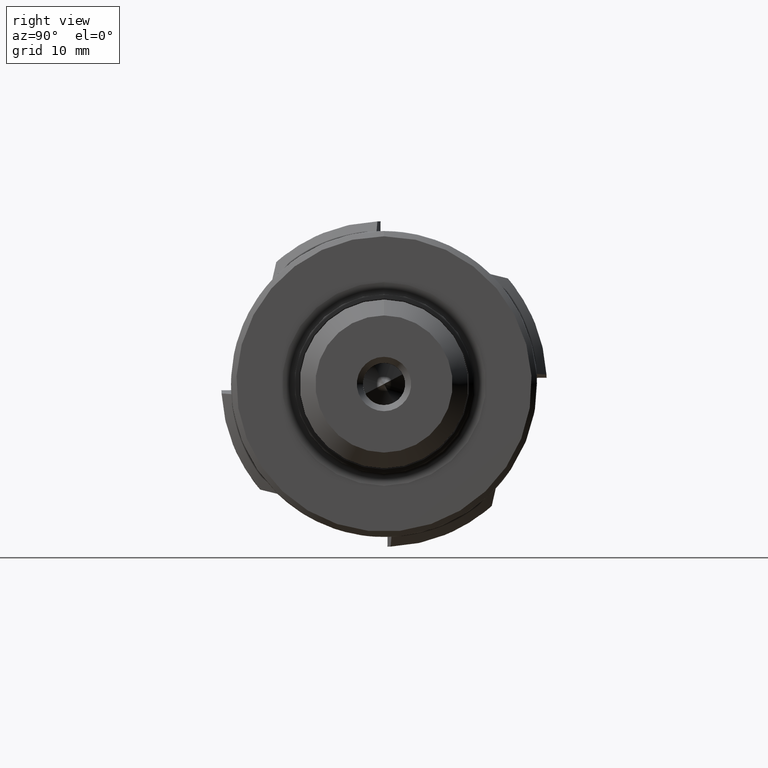
[diagram: clean part render]
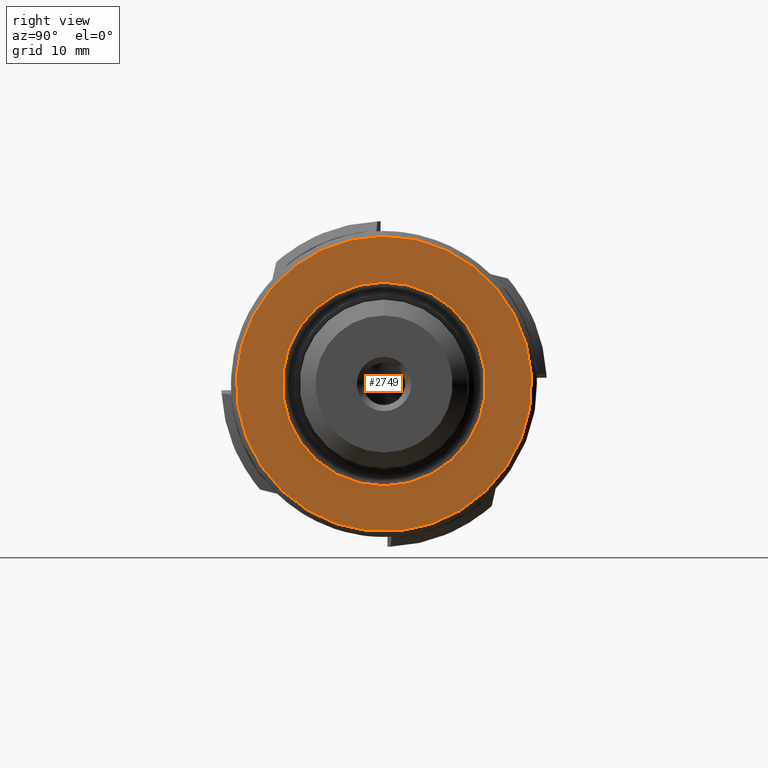
[diagram: same view with one face highlighted and labeled with its STEP entity id]
A machine part, right view. The second image highlights one B-rep face of the part: STEP entity #2749.
In plain terms, the highlighted planar face has unit normal (-1, 0, -0).
Its self-contained STEP definition (entity closure, byte-faithful):
#589 = DIRECTION ( 'NONE',  ( -0.0000000000000000000, 0.0000000000000000000, 1.000000000000000000 ) ) ;
#625 = CIRCLE ( 'NONE', #1569, 9.653493059404514300 ) ;
#946 = AXIS2_PLACEMENT_3D ( 'NONE', #4801, #2371, #5214 ) ;
#966 = ORIENTED_EDGE ( 'NONE', *, *, #2077, .F. ) ;
#983 = DIRECTION ( 'NONE',  ( -1.000000000000000000, 0.0000000000000000000, -0.0000000000000000000 ) ) ;
#1164 = EDGE_CURVE ( 'NONE', #3637, #3637, #625, .T. ) ;
#1569 = AXIS2_PLACEMENT_3D ( 'NONE', #3978, #1570, #4385 ) ;
#1570 = DIRECTION ( 'NONE',  ( -1.000000000000000000, -0.0000000000000000000, -0.0000000000000000000 ) ) ;
#1892 = EDGE_LOOP ( 'NONE', ( #2423 ) ) ;
#2077 = EDGE_CURVE ( 'NONE', #3357, #3357, #5016, .T. ) ;
#2371 = DIRECTION ( 'NONE',  ( -1.000000000000000000, -0.0000000000000000000, -0.0000000000000000000 ) ) ;
#2423 = ORIENTED_EDGE ( 'NONE', *, *, #1164, .T. ) ;
#2562 = EDGE_LOOP ( 'NONE', ( #966 ) ) ;
#2623 = CARTESIAN_POINT ( 'NONE',  ( 30.89999999999999900, 9.653493059404514300, 0.0000000000000000000 ) ) ;
#2749 = ADVANCED_FACE ( 'NONE', ( #5083, #3475 ), #3026, .F. ) ;
#3026 = PLANE ( 'NONE',  #4858 ) ;
#3176 = CARTESIAN_POINT ( 'NONE',  ( 30.89999999999999900, 0.0000000000000000000, 9.653493059404514300 ) ) ;
#3357 = VERTEX_POINT ( 'NONE', #4000 ) ;
#3475 = FACE_BOUND ( 'NONE', #1892, .T. ) ;
#3637 = VERTEX_POINT ( 'NONE', #3176 ) ;
#3978 = CARTESIAN_POINT ( 'NONE',  ( 30.89999999999999900, 0.0000000000000000000, 0.0000000000000000000 ) ) ;
#4000 = CARTESIAN_POINT ( 'NONE',  ( 30.89999999999999900, 0.0000000000000000000, 14.00000000000000000 ) ) ;
#4385 = DIRECTION ( 'NONE',  ( 0.0000000000000000000, 0.0000000000000000000, 1.000000000000000000 ) ) ;
#4801 = CARTESIAN_POINT ( 'NONE',  ( 30.89999999999999900, 0.0000000000000000000, 0.0000000000000000000 ) ) ;
#4858 = AXIS2_PLACEMENT_3D ( 'NONE', #2623, #983, #589 ) ;
#5016 = CIRCLE ( 'NONE', #946, 14.00000000000000000 ) ;
#5083 = FACE_OUTER_BOUND ( 'NONE', #2562, .T. ) ;
#5214 = DIRECTION ( 'NONE',  ( 0.0000000000000000000, 0.0000000000000000000, 1.000000000000000000 ) ) ;